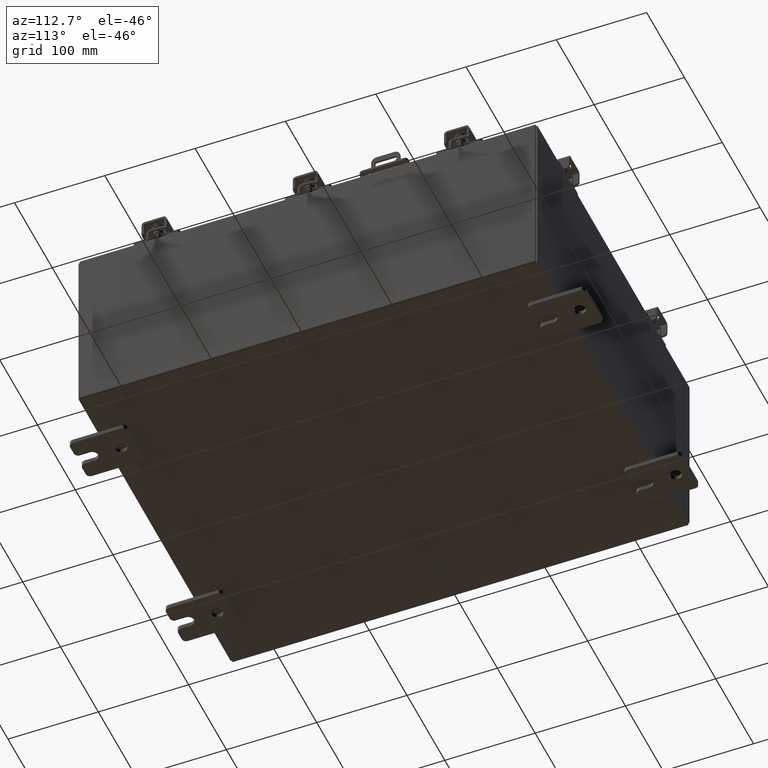
[diagram: clean part render]
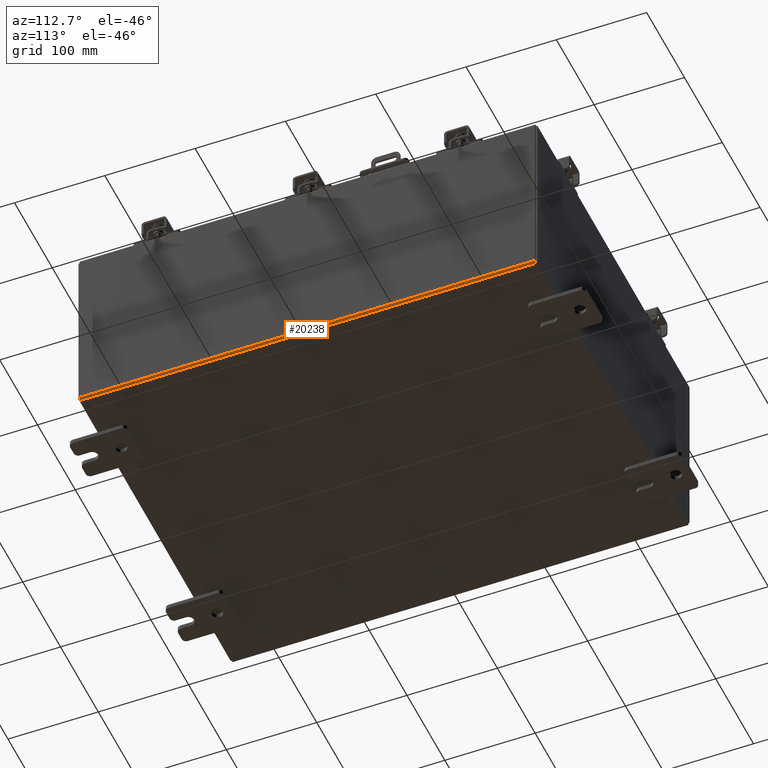
[diagram: same view with one face highlighted and labeled with its STEP entity id]
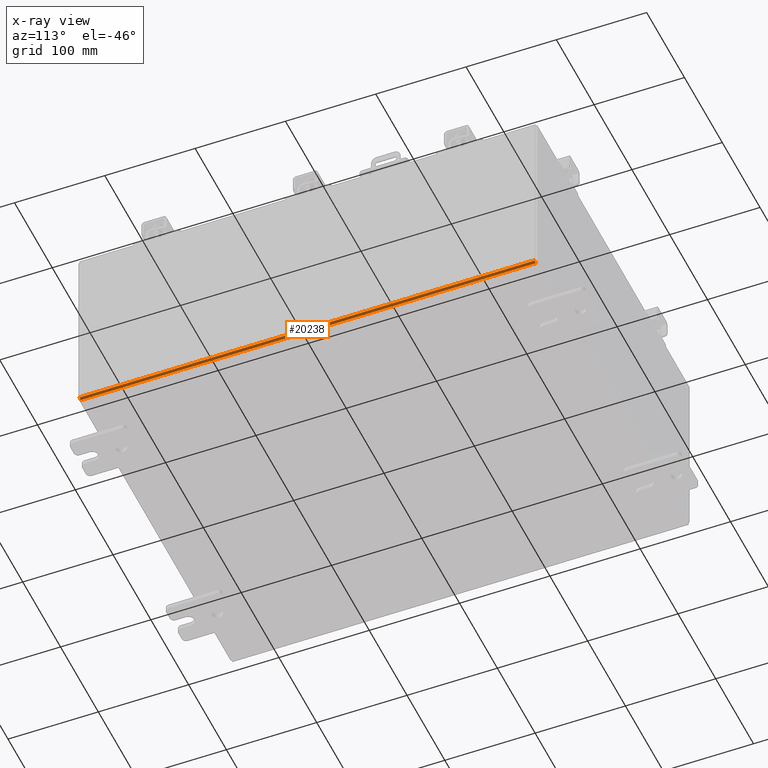
[diagram: x-ray of the same camera — body ghosted, the highlighted face saturated]
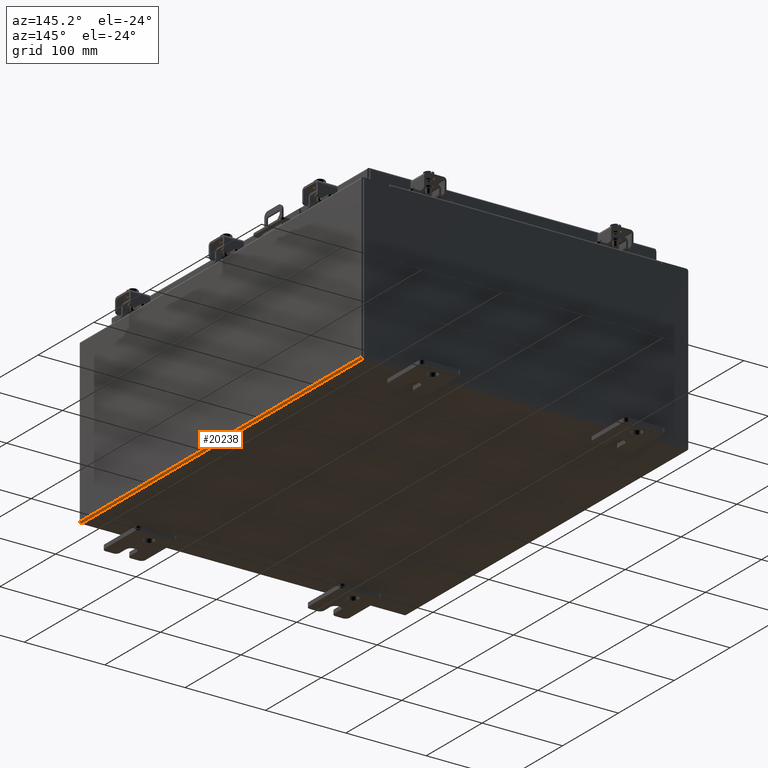
[diagram: same view with one face highlighted and labeled with its STEP entity id]
A machine part, auxiliary view. The second image highlights one B-rep face of the part: STEP entity #20238.
The next image is the same camera in x-ray: the body ghosted, the highlighted face saturated — about 0% of this face is hidden behind the body in this view.
A second angle (auxiliary view) of the same face is appended — the face is thin or edge-on in the first view.
In plain terms, the highlighted cylindrical surface (edge-blend (fillet) strip) has radius 2.2276 mm, axis along (0, 1, 0).
Its self-contained STEP definition (entity closure, byte-faithful):
#222 = DIRECTION ( 'NONE',  ( 0.0000000000000000000, 0.0000000000000000000, 1.000000000000000000 ) ) ;
#396 = EDGE_CURVE ( 'NONE', #8481, #12682, #7474, .T. ) ;
#1447 = DIRECTION ( 'NONE',  ( 0.0000000000000000000, 1.000000000000000000, 0.0000000000000000000 ) ) ;
#1515 = CARTESIAN_POINT ( 'NONE',  ( 7.912300000000001900, 9.925299999999998200, 0.01300000000000015200 ) ) ;
#3022 = CARTESIAN_POINT ( 'NONE',  ( 8.000000000000001800, -9.925300000000001800, 0.01299999999999984700 ) ) ;
#3552 = LINE ( 'NONE', #15804, #21482 ) ;
#5298 = CIRCLE ( 'NONE', #18155, 0.08770000000000009700 ) ;
#5776 = ORIENTED_EDGE ( 'NONE', *, *, #10085, .F. ) ;
#5837 = CARTESIAN_POINT ( 'NONE',  ( 7.912300000000001900, -9.925300000000001800, 0.01300000000000015200 ) ) ;
#7474 = LINE ( 'NONE', #3022, #17867 ) ;
#7511 = VERTEX_POINT ( 'NONE', #8318 ) ;
#7575 = DIRECTION ( 'NONE',  ( 0.0000000000000000000, 0.0000000000000000000, 1.000000000000000000 ) ) ;
#7996 = CIRCLE ( 'NONE', #21941, 0.08770000000000009700 ) ;
#8318 = CARTESIAN_POINT ( 'NONE',  ( 7.912300000000001900, -9.925300000000001800, -0.07470000000000000300 ) ) ;
#8481 = VERTEX_POINT ( 'NONE', #10589 ) ;
#8776 = DIRECTION ( 'NONE',  ( -0.0000000000000000000, -1.000000000000000000, -0.0000000000000000000 ) ) ;
#9899 = CARTESIAN_POINT ( 'NONE',  ( 7.912300000000001900, 9.925299999999996500, -0.07469999999999994700 ) ) ;
#10085 = EDGE_CURVE ( 'NONE', #7511, #12682, #7996, .T. ) ;
#10589 = CARTESIAN_POINT ( 'NONE',  ( 8.000000000000001800, 9.925299999999996500, 0.01299999999999984700 ) ) ;
#10623 = DIRECTION ( 'NONE',  ( 0.0000000000000000000, 1.000000000000000000, 0.0000000000000000000 ) ) ;
#11673 = ORIENTED_EDGE ( 'NONE', *, *, #11930, .F. ) ;
#11930 = EDGE_CURVE ( 'NONE', #20906, #7511, #3552, .T. ) ;
#11939 = DIRECTION ( 'NONE',  ( 1.000000000000000000, 0.0000000000000000000, -3.455694262224952200E-015 ) ) ;
#12583 = FACE_OUTER_BOUND ( 'NONE', #21414, .T. ) ;
#12682 = VERTEX_POINT ( 'NONE', #17852 ) ;
#14005 = ORIENTED_EDGE ( 'NONE', *, *, #396, .T. ) ;
#14949 = ORIENTED_EDGE ( 'NONE', *, *, #16143, .F. ) ;
#15804 = CARTESIAN_POINT ( 'NONE',  ( 7.912300000000001900, 9.925299999999998200, -0.07469999999999994700 ) ) ;
#16143 = EDGE_CURVE ( 'NONE', #8481, #20906, #5298, .T. ) ;
#17566 = DIRECTION ( 'NONE',  ( -0.0000000000000000000, -1.000000000000000000, -0.0000000000000000000 ) ) ;
#17852 = CARTESIAN_POINT ( 'NONE',  ( 8.000000000000001800, -9.925300000000001800, 0.01299999999999984800 ) ) ;
#17867 = VECTOR ( 'NONE', #8776, 39.37007874015748100 ) ;
#17914 = AXIS2_PLACEMENT_3D ( 'NONE', #1515, #1447, #11939 ) ;
#18054 = DIRECTION ( 'NONE',  ( -0.0000000000000000000, -1.000000000000000000, -0.0000000000000000000 ) ) ;
#18155 = AXIS2_PLACEMENT_3D ( 'NONE', #21054, #10623, #222 ) ;
#20238 = ADVANCED_FACE ( 'NONE', ( #12583 ), #21271, .T. ) ;
#20906 = VERTEX_POINT ( 'NONE', #9899 ) ;
#21054 = CARTESIAN_POINT ( 'NONE',  ( 7.912300000000001900, 9.925299999999996500, 0.01300000000000015200 ) ) ;
#21271 = CYLINDRICAL_SURFACE ( 'NONE', #17914, 0.08770000000000026400 ) ;
#21414 = EDGE_LOOP ( 'NONE', ( #11673, #14949, #14005, #5776 ) ) ;
#21482 = VECTOR ( 'NONE', #17566, 39.37007874015748100 ) ;
#21941 = AXIS2_PLACEMENT_3D ( 'NONE', #5837, #18054, #7575 ) ;